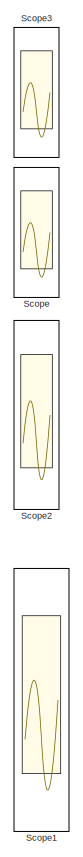
[diagram: root canvas - part 1/4, right side, full height]
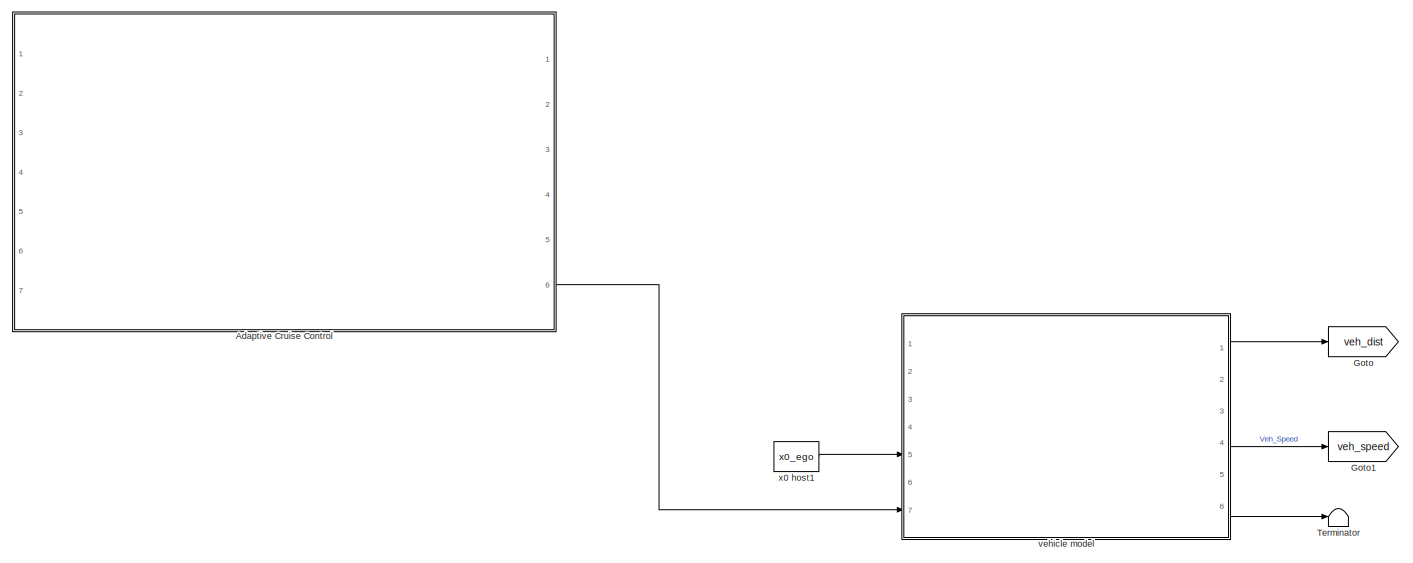
[diagram: root canvas - part 2/4, central region]
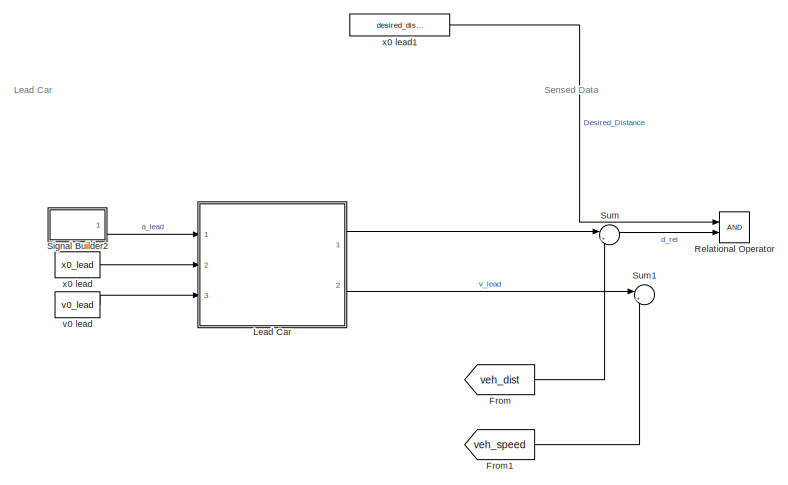
[diagram: root canvas - part 3/4, middle left region]
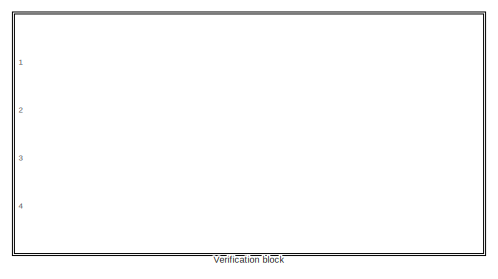
[diagram: root canvas - part 4/4, bottom right region]
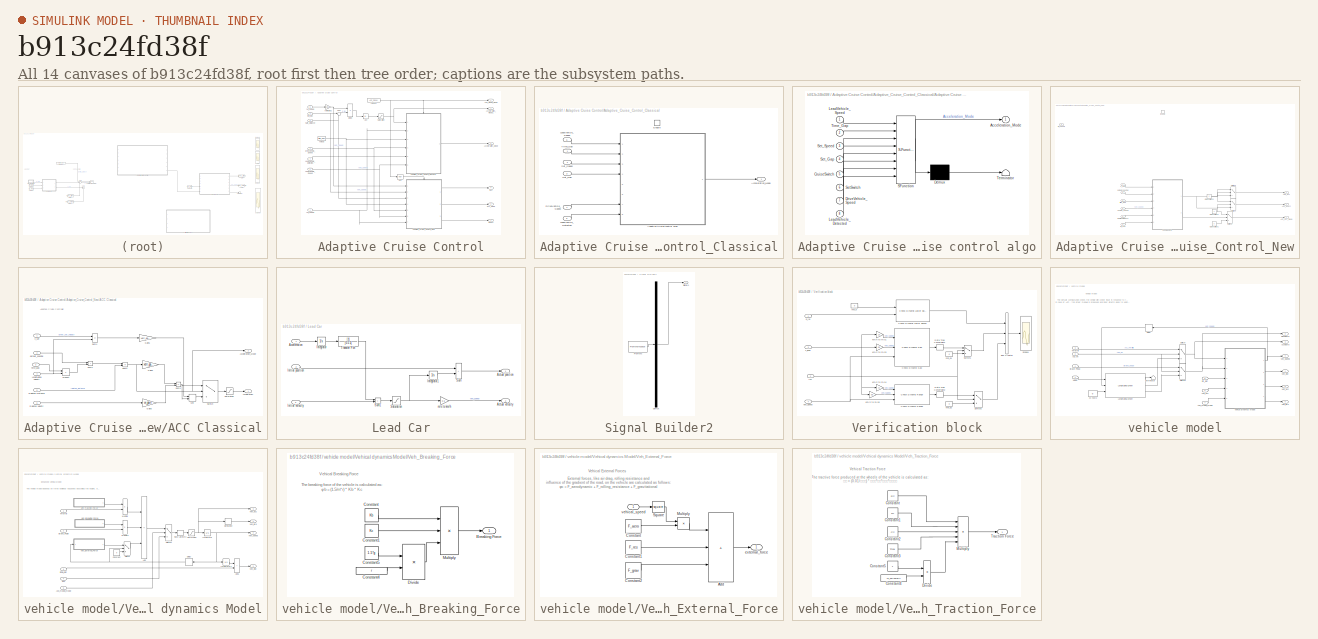
[diagram: thumbnail index - all 14 canvases of the model, root first then tree order]
MODEL slx_b913c24fd38f
KIND model
CONFIG AbsTol = auto
CONFIG EnableMultiTasking = off
CONFIG FixedStep = 0.1
CONFIG MaxStep = auto
CONFIG MinStep = auto
CONFIG RelTol = 1e-3
CONFIG SampleTimeConstraint = Unconstrained
CONFIG Solver = VariableStepAuto
CONFIG SolverName = VariableStepAuto
CONFIG StartTime = 0.0
CONFIG StopTime = 1000
BLOCK [SubSystem] Adaptive Cruise Control
  Ports = [7, 6]
  RequestExecContextInheritance = off
BLOCK [Outport] Adaptive Cruise Control/ACC_model_mode
  Port = 6
BLOCK [Abs] Adaptive Cruise Control/Abs
  SaturateOnIntegerOverflow = off
BLOCK [Outport] Adaptive Cruise Control/Acceleration_Mode
  Port = 2
BLOCK [Outport] Adaptive Cruise Control/Acceleration_Mode1
  Port = 3
BLOCK [SubSystem] Adaptive Cruise Control/Adaptive_Cruise_Control_Classical
  Ports = [6, 1, 1]
  RequestExecContextInheritance = off
BLOCK [Outport] Adaptive Cruise Control/Adaptive_Cruise_Control_Classical/Acceleration_Mode
  OutMax = 255
  OutMin = 0
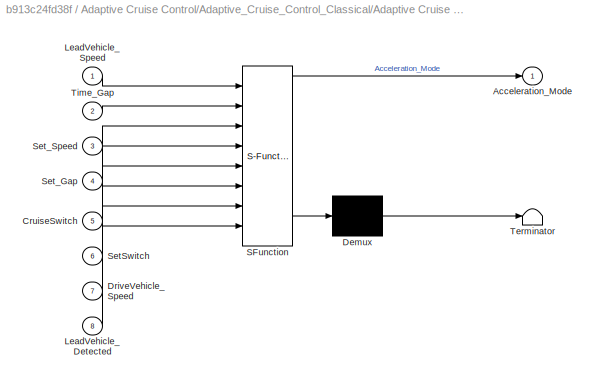
BLOCK [SubSystem] Adaptive Cruise Control/Adaptive_Cruise_Control_Classical/Adaptive Cruise control algo
  ErrorFcn = Stateflow.Translate.translate
  PermitHierarchicalResolution = ExplicitOnly
  Ports = [8, 1]
  RequestExecContextInheritance = off
  SFBlockType = Chart
  TreatAsAtomicUnit = on
BLOCK [Demux] Adaptive Cruise Control/Adaptive_Cruise_Control_Classical/Adaptive Cruise control algo/ Demux 
  Outputs = 1
  Ports = [1, 1]
BLOCK [S-Function] Adaptive Cruise Control/Adaptive_Cruise_Control_Classical/Adaptive Cruise control algo/ SFunction 
  EnableBusSupport = on
  FunctionName = sf_sfun
  PortCounts = [8 2]
  Ports = [8, 2]
  SFcnIsStateOwnerBlock = off
  SFunctionDeploymentMode = off
  Tag = Stateflow S-Function 3
BLOCK [Terminator] Adaptive Cruise Control/Adaptive_Cruise_Control_Classical/Adaptive Cruise control algo/ Terminator 
BLOCK [Outport] Adaptive Cruise Control/Adaptive_Cruise_Control_Classical/Adaptive Cruise control algo/Acceleration_Mode
BLOCK [Inport] Adaptive Cruise Control/Adaptive_Cruise_Control_Classical/Adaptive Cruise control algo/CruiseSwitch
  Port = 5
BLOCK [Inport] Adaptive Cruise Control/Adaptive_Cruise_Control_Classical/Adaptive Cruise control algo/DriveVehicle_Speed
  Port = 7
BLOCK [Inport] Adaptive Cruise Control/Adaptive_Cruise_Control_Classical/Adaptive Cruise control algo/LeadVehicle_Detected
  Port = 8
BLOCK [Inport] Adaptive Cruise Control/Adaptive_Cruise_Control_Classical/Adaptive Cruise control algo/LeadVehicle_Speed
BLOCK [Inport] Adaptive Cruise Control/Adaptive_Cruise_Control_Classical/Adaptive Cruise control algo/SetSwitch
  Port = 6
BLOCK [Inport] Adaptive Cruise Control/Adaptive_Cruise_Control_Classical/Adaptive Cruise control algo/Set_Gap
  Port = 4
BLOCK [Inport] Adaptive Cruise Control/Adaptive_Cruise_Control_Classical/Adaptive Cruise control algo/Set_Speed
  Port = 3
BLOCK [Inport] Adaptive Cruise Control/Adaptive_Cruise_Control_Classical/Adaptive Cruise control algo/Time_Gap
  Port = 2
BLOCK [Inport] Adaptive Cruise Control/Adaptive_Cruise_Control_Classical/DriveVehicle_Speed
  OutMax = 255
  OutMin = 0
  Port = 4
BLOCK [EnablePort] Adaptive Cruise Control/Adaptive_Cruise_Control_Classical/Enable
  Ports = []
BLOCK [Inport] Adaptive Cruise Control/Adaptive_Cruise_Control_Classical/LeadVehicle_Detected
  OutMax = 1
  OutMin = 0
  Port = 5
BLOCK [Inport] Adaptive Cruise Control/Adaptive_Cruise_Control_Classical/LeadVehicle_Speed
  OutMax = 255
  OutMin = 0
  Port = 6
BLOCK [Inport] Adaptive Cruise Control/Adaptive_Cruise_Control_Classical/Set_Gap
  Port = 3
BLOCK [Inport] Adaptive Cruise Control/Adaptive_Cruise_Control_Classical/Set_Speed
  Port = 2
BLOCK [Inport] Adaptive Cruise Control/Adaptive_Cruise_Control_Classical/Time_Gap
BLOCK [SubSystem] Adaptive Cruise Control/Adaptive_Cruise_Control_New
  Ports = [7, 3, 1]
  RequestExecContextInheritance = off
BLOCK [SubSystem] Adaptive Cruise Control/Adaptive_Cruise_Control_New/ACC Classical
  Ports = [6, 2]
  RTWFileNameOpts = Use function name
  RTWSystemCode = Reusable function
  RequestExecContextInheritance = off
  TreatAsAtomicUnit = on
  VariantControl = controller_type == 1
BLOCK [Outport] Adaptive Cruise Control/Adaptive_Cruise_Control_New/ACC Classical/Acceleration
  VectorParamsAs1DForOutWhenUnconnected = off
BLOCK [Outport] Adaptive Cruise Control/Adaptive_Cruise_Control_New/ACC Classical/Acceleration_Mode
  Port = 2
  VectorParamsAs1DForOutWhenUnconnected = off
BLOCK [Gain] Adaptive Cruise Control/Adaptive_Cruise_Control_New/ACC Classical/Gain1
  Gain = verr_gain
BLOCK [Gain] Adaptive Cruise Control/Adaptive_Cruise_Control_New/ACC Classical/Gain2
  Gain = xerr_gain
BLOCK [Gain] Adaptive Cruise Control/Adaptive_Cruise_Control_New/ACC Classical/Gain3
  Gain = vx_gain
BLOCK [Inport] Adaptive Cruise Control/Adaptive_Cruise_Control_New/ACC Classical/Longitudinal Velocity
  Port = 4
BLOCK [MinMax] Adaptive Cruise Control/Adaptive_Cruise_Control_New/ACC Classical/Min
  Inputs = 2
  Ports = [2, 1]
BLOCK [Product] Adaptive Cruise Control/Adaptive_Cruise_Control_New/ACC Classical/Product
  Ports = [2, 1]
BLOCK [Inport] Adaptive Cruise Control/Adaptive_Cruise_Control_New/ACC Classical/Relative Distance
  Port = 5
BLOCK [Inport] Adaptive Cruise Control/Adaptive_Cruise_Control_New/ACC Classical/Relative Velocity
  Port = 6
BLOCK [Saturate] Adaptive Cruise Control/Adaptive_Cruise_Control_New/ACC Classical/Saturation
  LowerLimit = min_ac
  UpperLimit = max_ac
BLOCK [Sum] Adaptive Cruise Control/Adaptive_Cruise_Control_New/ACC Classical/Sum1
  IconShape = rectangular
  Inputs = +-
  Ports = [2, 1]
BLOCK [Sum] Adaptive Cruise Control/Adaptive_Cruise_Control_New/ACC Classical/Sum2
  IconShape = rectangular
  Ports = [2, 1]
BLOCK [Sum] Adaptive Cruise Control/Adaptive_Cruise_Control_New/ACC Classical/Sum3
  IconShape = rectangular
  Inputs = -+
  Ports = [2, 1]
BLOCK [Sum] Adaptive Cruise Control/Adaptive_Cruise_Control_New/ACC Classical/Sum4
  IconShape = rectangular
  Inputs = +-
  Ports = [2, 1]
BLOCK [Switch] Adaptive Cruise Control/Adaptive_Cruise_Control_New/ACC Classical/Switch
  Criteria = u2 > Threshold
  InputSameDT = off
  SaturateOnIntegerOverflow = off
BLOCK [Inport] Adaptive Cruise Control/Adaptive_Cruise_Control_New/ACC Classical/default_spacing
  Port = 2
BLOCK [Inport] Adaptive Cruise Control/Adaptive_Cruise_Control_New/ACC Classical/time_gap
  Port = 3
BLOCK [Inport] Adaptive Cruise Control/Adaptive_Cruise_Control_New/ACC Classical/v_set
BLOCK [Outport] Adaptive Cruise Control/Adaptive_Cruise_Control_New/ACC_acc
BLOCK [Outport] Adaptive Cruise Control/Adaptive_Cruise_Control_New/ACC_acc_mode
  Port = 2
BLOCK [Outport] Adaptive Cruise Control/Adaptive_Cruise_Control_New/ACC_deacc
  Port = 3
BLOCK [Constant] Adaptive Cruise Control/Adaptive_Cruise_Control_New/CruiseSwitch1
  Value = 0
BLOCK [Constant] Adaptive Cruise Control/Adaptive_Cruise_Control_New/CruiseSwitch2
BLOCK [Constant] Adaptive Cruise Control/Adaptive_Cruise_Control_New/CruiseSwitch3
  Value = 0
BLOCK [EnablePort] Adaptive Cruise Control/Adaptive_Cruise_Control_New/Enable
  Ports = []
BLOCK [Inport] Adaptive Cruise Control/Adaptive_Cruise_Control_New/Relative Distance
  Port = 2
BLOCK [Switch] Adaptive Cruise Control/Adaptive_Cruise_Control_New/Switch2
  Criteria = u2 > Threshold
  InputSameDT = off
  SaturateOnIntegerOverflow = off
BLOCK [Switch] Adaptive Cruise Control/Adaptive_Cruise_Control_New/Switch3
  Criteria = u2 > Threshold
  InputSameDT = off
  SaturateOnIntegerOverflow = off
BLOCK [Switch] Adaptive Cruise Control/Adaptive_Cruise_Control_New/Switch4
  Criteria = u2 > Threshold
  InputSameDT = off
  SaturateOnIntegerOverflow = off
BLOCK [Inport] Adaptive Cruise Control/Adaptive_Cruise_Control_New/Vehicle_speed
  Port = 5
BLOCK [Inport] Adaptive Cruise Control/Adaptive_Cruise_Control_New/default_spacing
  Port = 3
BLOCK [Inport] Adaptive Cruise Control/Adaptive_Cruise_Control_New/ref_speed
  Port = 6
BLOCK [Inport] Adaptive Cruise Control/Adaptive_Cruise_Control_New/rel_veh
BLOCK [Inport] Adaptive Cruise Control/Adaptive_Cruise_Control_New/time_gap
  Port = 4
BLOCK [Inport] Adaptive Cruise Control/Adaptive_Cruise_Control_New/v_set
  Port = 7
BLOCK [Product] Adaptive Cruise Control/Divide
  Inputs = /*
  Ports = [2, 1]
BLOCK [Inport] Adaptive Cruise Control/DriveVehicle_Speed
  OutMax = 255
  OutMin = 0
  Port = 7
BLOCK [Inport] Adaptive Cruise Control/LeadVehicle_Detected
  OutMax = 1
  OutMin = 0
  Port = 4
BLOCK [Inport] Adaptive Cruise Control/LeadVehicle_Speed
  OutMax = 255
  OutMin = 0
  Port = 6
BLOCK [Logic] Adaptive Cruise Control/NOT
  AllPortsSameDT = off
  IconShape = distinctive
  Operator = NOT
  OutDataTypeStr = boolean
  Ports = [1, 1]
BLOCK [Inport] Adaptive Cruise Control/Rel_dist
  Port = 3
BLOCK [Inport] Adaptive Cruise Control/Safe_Distance
  Port = 2
BLOCK [Saturate] Adaptive Cruise Control/Saturation
  LowerLimit = 0
  UpperLimit = 100
BLOCK [Sum] Adaptive Cruise Control/Sum
  Inputs = |++
  Ports = [2, 1]
BLOCK [Outport] Adaptive Cruise Control/acc
  Port = 4
BLOCK [Outport] Adaptive Cruise Control/acc_mode
  Port = 5
BLOCK [Outport] Adaptive Cruise Control/deacc
BLOCK [Gain] Adaptive Cruise Control/km//h to m//s2
  Gain = 1/3.6
BLOCK [Inport] Adaptive Cruise Control/ref_speed
BLOCK [Inport] Adaptive Cruise Control/rel_speed
  OutMax = 1
  OutMin = 0
  Port = 5
BLOCK [Constant] Adaptive Cruise Control/v0 lead
  SampleTime = Ts
  Value = time_gap
BLOCK [Constant] Adaptive Cruise Control/v0 lead1
  SampleTime = Ts
  Value = ACC_model
BLOCK [From] From
  GotoTag = veh_dist
BLOCK [From] From1
  GotoTag = veh_speed
BLOCK [Goto] Goto
  GotoTag = veh_dist
BLOCK [Goto] Goto1
  GotoTag = veh_speed
BLOCK [SubSystem] Lead Car
  Ports = [3, 2]
  RequestExecContextInheritance = off
BLOCK [Inport] Lead Car/Acceleration
BLOCK [Outport] Lead Car/Actual position
  VectorParamsAs1DForOutWhenUnconnected = off
BLOCK [Outport] Lead Car/Actual velocity
  Port = 2
  VectorParamsAs1DForOutWhenUnconnected = off
BLOCK [Inport] Lead Car/Initial position
  Port = 2
BLOCK [Inport] Lead Car/Initial velocity
  Port = 3
BLOCK [Integrator] Lead Car/Integrator
  Ports = [1, 1]
BLOCK [Integrator] Lead Car/Integrator1
  Ports = [1, 1]
BLOCK [Saturate] Lead Car/Saturation
  LowerLimit = 0
  UpperLimit = 200
BLOCK [Sum] Lead Car/Sum
  IconShape = rectangular
  Ports = [2, 1]
BLOCK [Sum] Lead Car/Sum1
  IconShape = rectangular
  Ports = [2, 1]
BLOCK [TransferFcn] Lead Car/Transfer Fcn
  Denominator = [0.5 1]
BLOCK [Gain] Lead Car/m//s to km//h
  Gain = 3.6
BLOCK [RelationalOperator] Relational Operator
  InputSameDT = off
  OutDataTypeStr = boolean
  Ports = [2, 1]
  RndMeth = Simplest
BLOCK [Scope] Scope
  Floating = off
  NumInputPorts = 4
  Ports = [4]
  ScopeSpecificationString = Simulink.scopes.TimeScopeBlockCfg('CurrentConfiguration', extmgr.ConfigurationSet(extmgr.Configuration('Core','General UI',true),extmgr.Configuration('Core','Source UI',true),extmgr.Configuration('Sources','WiredSimulink',true),extmgr.Configuration('Visuals','Time Domain',true,'SerializedDisplays',{struct('MinYLimReal','-2551.2625','MaxYLimReal','24961.3625','YLabelReal','{\itv} in {\it km/h}','Mi...<+3973ch>
BLOCK [Scope] Scope1
  Floating = off
  NumInputPorts = 4
  Ports = [4]
  ScopeSpecificationString = Simulink.scopes.TimeScopeBlockCfg('CurrentConfiguration', extmgr.ConfigurationSet(extmgr.Configuration('Core','General UI',true),extmgr.Configuration('Core','Source UI',true),extmgr.Configuration('Sources','WiredSimulink',true,'DataLoggingVariableName','ScopeData1'),extmgr.Configuration('Visuals','Time Domain',true,'SerializedDisplays',{struct('MinYLimReal','-19.08377','MaxYLimReal','171.75392','Y...<+3953ch>
BLOCK [Scope] Scope2
  Floating = off
  NumInputPorts = 4
  Ports = [4]
  ScopeSpecificationString = Simulink.scopes.TimeScopeBlockCfg('CurrentConfiguration', extmgr.ConfigurationSet(extmgr.Configuration('Core','General UI',true),extmgr.Configuration('Core','Source UI',true),extmgr.Configuration('Sources','WiredSimulink',true,'DataLoggingVariableName','ScopeData1'),extmgr.Configuration('Visuals','Time Domain',true,'SerializedDisplays',{struct('MinYLimReal','-0.125','MaxYLimReal','1.125','YLabelRe...<+2030ch>
BLOCK [Scope] Scope3
  Floating = off
  NumInputPorts = 4
  Ports = [4]
  ScopeSpecificationString = Simulink.scopes.TimeScopeBlockCfg('CurrentConfiguration', extmgr.ConfigurationSet(extmgr.Configuration('Core','General UI',true),extmgr.Configuration('Core','Source UI',true),extmgr.Configuration('Sources','WiredSimulink',true,'DataLoggingVariableName','ScopeData2'),extmgr.Configuration('Visuals','Time Domain',true,'SerializedDisplays',{struct('MinYLimReal','15.16574','MaxYLimReal','503.50836','YL...<+4003ch>
BLOCK [SubSystem] Signal Builder2
  ClipboardFcn = sigbuilder_block('clipboard');
  CloseFcn = sigbuilder_block('close');
  ContinueFcn = sigbuilder_block('continue');
  CopyFcn = sigbuilder_block('copy');
  DeleteFcn = sigbuilder_block('delete');
  LoadFcn = sigbuilder_block('load');
  MaskHideContents = on
  ModelCloseFcn = sigbuilder_block('modelClose');
  NameChangeFcn = sigbuilder_block('namechange');
  OpenFcn = sigbuilder_block('open',[-1359 225 891.75 468.75 ]);
  PauseFcn = sigbuilder_block('pause');
  Ports = [0, 1]
  PreSaveFcn = sigbuilder_block('preSave');
  RequestExecContextInheritance = off
  StartFcn = sigbuilder_block('start');
  StopFcn = sigbuilder_block('stop');
  Tag = STV Subsys
BLOCK [Demux] Signal Builder2/Demux
  DisplayOption = none
  Outputs = 1
  Ports = [1, 1]
  Tag = STV Demux
BLOCK [FromWorkspace] Signal Builder2/FromWs
  Tag = STV FromWs
  VariableName = tuvar
BLOCK [Outport] Signal Builder2/Signal 1
  Tag = STV Outport
BLOCK [Sum] Sum
  Inputs = |+-
  Ports = [2, 1]
BLOCK [Sum] Sum1
  Inputs = |+-
  Ports = [2, 1]
BLOCK [Terminator] Terminator
BLOCK [SubSystem] Verification block
  Ports = [4]
  RequestExecContextInheritance = off
BLOCK [BusCreator] Verification block/Bus Creator
  DisplayOption = bar
  InheritFromInputs = on
  Inputs = 3
  Ports = [3, 1]
BLOCK [Reference] Verification block/Check Dynamic Gap  REF=simulink/Model
Verification/Check 
Dynamic Gap
  Description = u < min || max < u
  Ports = [3, 1]
  SourceBlock = simulink/Model\nVerification/Check \nDynamic Gap
  SourceProductBaseCode = SL
  SourceType = Checks_DGap
BLOCK [Reference] Verification block/Check Dynamic Lower Bound  REF=simulink/Model
Verification/Check Dynamic 
Lower Bound
  Description = min < u
  Ports = [2, 1]
  SourceBlock = simulink/Model\nVerification/Check Dynamic \nLower Bound
  SourceProductBaseCode = SL
  SourceType = Checks_DMin
BLOCK [Reference] Verification block/Check Dynamic Range  REF=simulink/Model
Verification/Check 
Dynamic Range
  Description = min < u < max
  Ports = [3, 1]
  SourceBlock = simulink/Model\nVerification/Check \nDynamic Range
  SourceProductBaseCode = SL
  SourceType = Checks_DRange
BLOCK [DataTypeConversion] Verification block/Data Type Conversion1
  OutDataTypeStr = double
  RndMeth = Floor
  SaturateOnIntegerOverflow = off
BLOCK [DataTypeConversion] Verification block/Data Type Conversion2
  OutDataTypeStr = double
  RndMeth = Floor
  SaturateOnIntegerOverflow = off
BLOCK [Inport] Verification block/In2
  Port = 2
BLOCK [Scope] Verification block/Scope4
  Floating = off
  NumInputPorts = 1
  Ports = [1]
  ScopeSpecificationString = Simulink.scopes.TimeScopeBlockCfg('CurrentConfiguration', extmgr.ConfigurationSet(extmgr.Configuration('Core','General UI',true),extmgr.Configuration('Core','Source UI',true),extmgr.Configuration('Sources','WiredSimulink',true,'DataLoggingVariableName','ScopeData4'),extmgr.Configuration('Visuals','Time Domain',true,'SerializedDisplays',{struct('MinYLimReal','0.9','MaxYLimReal','1.1','YLabelReal','...<+2657ch>
BLOCK [Switch] Verification block/Switch1
  Criteria = u2 > Threshold
BLOCK [Switch] Verification block/Switch2
  Criteria = u2 > Threshold
BLOCK [Inport] Verification block/Veh_Speed
  Port = 4
BLOCK [Inport] Verification block/d_rel
BLOCK [Gain] Verification block/km//h to m//s1
  Gain = 1.5
BLOCK [Gain] Verification block/km//h to m//s3
  Gain = 0.5
BLOCK [Gain] Verification block/km//h to m//s4
  Gain = 1.1
BLOCK [Gain] Verification block/km//h to m//s5
  Gain = 0.9
BLOCK [Constant] Verification block/min_d
  Value = 0
BLOCK [Constant] Verification block/min_d1
  Value = 0
BLOCK [Constant] Verification block/min_d2
  Value = 0
BLOCK [Inport] Verification block/v_lead
  Port = 3
BLOCK [Constant] v0 lead
  SampleTime = Ts
  Value = v0_lead
BLOCK [SubSystem] vehicle model
  Ports = [7, 6]
  RequestExecContextInheritance = off
  ShowPortLabels = FromPortBlockName
BLOCK [Inport] vehicle model/ACC on
  Port = 2
BLOCK [Inport] vehicle model/ACC_acc
  Port = 6
BLOCK [Inport] vehicle model/ACC_model_mode
  Port = 7
BLOCK [Outport] vehicle model/AccelCmd
  Port = 3
BLOCK [Inport] vehicle model/Brake Pedal
  Port = 4
BLOCK [Outport] vehicle model/DecelCmd
  Port = 2
BLOCK [Delay] vehicle model/Delay
  DelayLength = 1
  InitialCondition = 0
  InputPortMap = u0
  Ports = [1, 1]
BLOCK [Reference] vehicle model/Longitudinal Driver  REF=autolibshared/Longitudinal Driver
  Ports = [3, 3]
  SourceBlock = autolibshared/Longitudinal Driver
  SourceProductBaseCode = PW,MT,VE,VP
  SourceType = Longitudinal Driver
BLOCK [Switch] vehicle model/Switch
  Criteria = u2 > Threshold
BLOCK [Switch] vehicle model/Switch1
  Criteria = u2 > Threshold
BLOCK [Terminator] vehicle model/Terminator
BLOCK [Inport] vehicle model/Throttle
  Port = 3
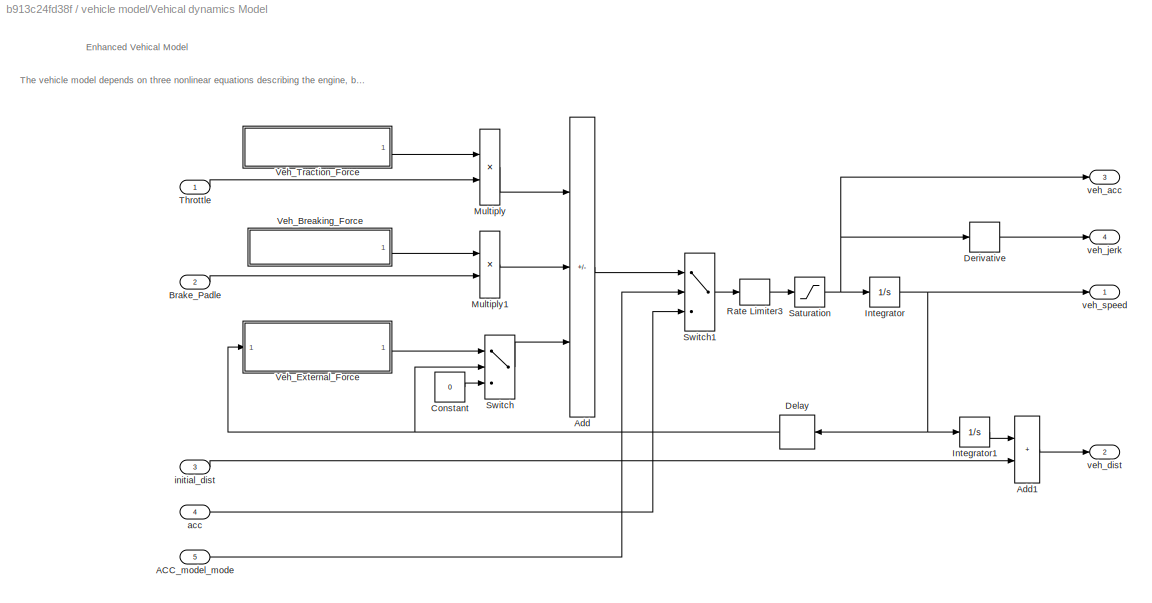
BLOCK [SubSystem] vehicle model/Vehical dynamics Model
  Ports = [5, 4]
  RequestExecContextInheritance = off
BLOCK [Inport] vehicle model/Vehical dynamics Model/ACC_model_mode
  Port = 5
BLOCK [Sum] vehicle model/Vehical dynamics Model/Add
  IconShape = rectangular
  Inputs = +--
  Ports = [3, 1]
BLOCK [Sum] vehicle model/Vehical dynamics Model/Add1
  IconShape = rectangular
  Ports = [2, 1]
BLOCK [Inport] vehicle model/Vehical dynamics Model/Brake_Padle
  Port = 2
BLOCK [Constant] vehicle model/Vehical dynamics Model/Constant
  Value = 0
BLOCK [Delay] vehicle model/Vehical dynamics Model/Delay
  DelayLength = 1
  InitialCondition = 0
  InputPortMap = u0
  Ports = [1, 1]
BLOCK [Derivative] vehicle model/Vehical dynamics Model/Derivative
BLOCK [Integrator] vehicle model/Vehical dynamics Model/Integrator
  Ports = [1, 1]
BLOCK [Integrator] vehicle model/Vehical dynamics Model/Integrator1
  Ports = [1, 1]
BLOCK [Product] vehicle model/Vehical dynamics Model/Multiply
  Ports = [2, 1]
BLOCK [Product] vehicle model/Vehical dynamics Model/Multiply1
  Ports = [2, 1]
BLOCK [RateLimiter] vehicle model/Vehical dynamics Model/Rate Limiter3
BLOCK [Saturate] vehicle model/Vehical dynamics Model/Saturation
  LowerLimit = -3
  UpperLimit = 3
BLOCK [Switch] vehicle model/Vehical dynamics Model/Switch
  Criteria = u2 > Threshold
BLOCK [Switch] vehicle model/Vehical dynamics Model/Switch1
  Criteria = u2 > Threshold
BLOCK [Inport] vehicle model/Vehical dynamics Model/Throttle
BLOCK [SubSystem] vehicle model/Vehical dynamics Model/Veh_Breaking_Force
  Ports = [0, 1]
  RequestExecContextInheritance = off
BLOCK [Outport] vehicle model/Vehical dynamics Model/Veh_Breaking_Force/Breaking Force 
  VectorParamsAs1DForOutWhenUnconnected = off
BLOCK [Constant] vehicle model/Vehical dynamics Model/Veh_Breaking_Force/Constant
  Value = Kb
BLOCK [Constant] vehicle model/Vehical dynamics Model/Veh_Breaking_Force/Constant1
  Value = Kc
BLOCK [Constant] vehicle model/Vehical dynamics Model/Veh_Breaking_Force/Constant4
  Value = r
BLOCK [Constant] vehicle model/Vehical dynamics Model/Veh_Breaking_Force/Constant5
  Value = 1.5*g
BLOCK [Product] vehicle model/Vehical dynamics Model/Veh_Breaking_Force/Divide
  Inputs = */
  Ports = [2, 1]
BLOCK [Product] vehicle model/Vehical dynamics Model/Veh_Breaking_Force/Multiply
  Inputs = 3
  Ports = [3, 1]
BLOCK [SubSystem] vehicle model/Vehical dynamics Model/Veh_External_Force
  Ports = [1, 1]
  RequestExecContextInheritance = off
BLOCK [Sum] vehicle model/Vehical dynamics Model/Veh_External_Force/Add
  IconShape = rectangular
  Inputs = +++
  Ports = [3, 1]
BLOCK [Constant] vehicle model/Vehical dynamics Model/Veh_External_Force/Constant
  Value = F_aero
BLOCK [Constant] vehicle model/Vehical dynamics Model/Veh_External_Force/Constant1
  Value = F_res
BLOCK [Constant] vehicle model/Vehical dynamics Model/Veh_External_Force/Constant2
  Value = F_grav
BLOCK [Product] vehicle model/Vehical dynamics Model/Veh_External_Force/Multiply
  Ports = [2, 1]
BLOCK [Math] vehicle model/Vehical dynamics Model/Veh_External_Force/Square
  Operator = square
  Ports = [1, 1]
  SignedPower = on
BLOCK [Outport] vehicle model/Vehical dynamics Model/Veh_External_Force/external_force
  VectorParamsAs1DForOutWhenUnconnected = off
BLOCK [Inport] vehicle model/Vehical dynamics Model/Veh_External_Force/vehical_speed
BLOCK [SubSystem] vehicle model/Vehical dynamics Model/Veh_Traction_Force
  Ports = [0, 1]
  RequestExecContextInheritance = off
BLOCK [Constant] vehicle model/Vehical dynamics Model/Veh_Traction_Force/Constant
  Value = Rtr
BLOCK [Constant] vehicle model/Vehical dynamics Model/Veh_Traction_Force/Constant1
  Value = Rf
BLOCK [Constant] vehicle model/Vehical dynamics Model/Veh_Traction_Force/Constant2
  Value = Ctr
BLOCK [Constant] vehicle model/Vehical dynamics Model/Veh_Traction_Force/Constant3
  Value = Tmax
BLOCK [Constant] vehicle model/Vehical dynamics Model/Veh_Traction_Force/Constant4
  Value = m_Follower*r
BLOCK [Constant] vehicle model/Vehical dynamics Model/Veh_Traction_Force/Constant5
BLOCK [Product] vehicle model/Vehical dynamics Model/Veh_Traction_Force/Divide
  Inputs = */
  Ports = [2, 1]
BLOCK [Product] vehicle model/Vehical dynamics Model/Veh_Traction_Force/Multiply
  Inputs = 5
  Ports = [5, 1]
BLOCK [Outport] vehicle model/Vehical dynamics Model/Veh_Traction_Force/Traction Force
  VectorParamsAs1DForOutWhenUnconnected = off
BLOCK [Inport] vehicle model/Vehical dynamics Model/acc
  Port = 4
BLOCK [Inport] vehicle model/Vehical dynamics Model/initial_dist
  Port = 3
BLOCK [Outport] vehicle model/Vehical dynamics Model/veh_acc
  Port = 3
  VectorParamsAs1DForOutWhenUnconnected = off
BLOCK [Outport] vehicle model/Vehical dynamics Model/veh_dist
  Port = 2
  VectorParamsAs1DForOutWhenUnconnected = off
BLOCK [Outport] vehicle model/Vehical dynamics Model/veh_jerk
  Port = 4
  VectorParamsAs1DForOutWhenUnconnected = off
BLOCK [Outport] vehicle model/Vehical dynamics Model/veh_speed
  VectorParamsAs1DForOutWhenUnconnected = off
BLOCK [Inport] vehicle model/VelRef
BLOCK [Inport] vehicle model/init_dist
  Port = 5
BLOCK [Outport] vehicle model/veh_Speed
  Port = 4
BLOCK [Outport] vehicle model/veh_acc
  Port = 5
BLOCK [Outport] vehicle model/veh_dist
BLOCK [Outport] vehicle model/veh_jerk
  Port = 6
BLOCK [Constant] vehicle model/x0 host2
  SampleTime = Ts
  Value = 0
BLOCK [Constant] x0 host1
  SampleTime = Ts
  Value = x0_ego
BLOCK [Constant] x0 lead
  SampleTime = Ts
  Value = x0_lead
BLOCK [Constant] x0 lead1
  SampleTime = Ts
  Value = desired_distance
ANNOTATION (root): Lead Car
ANNOTATION (root): Sensed Data
ANNOTATION Adaptive Cruise Control/Adaptive_Cruise_Control_New/ACC Classical: Adaptive Cruise Controller
ANNOTATION vehicle model: The default configuration drives the vehicle with driver input in response to ref speed provided as input and gives acc and velocity of vehicle as output. in case of ACC , the driver module is bypassed and input directly goes to vehicle dynamics models to change speed.
ANNOTATION vehicle model: Vehicle model
ANNOTATION vehicle model/Vehical dynamics Model: The vehicle model depends on three nonlinear equations describing the engine, brake system and dynamics of the vehicle.
ANNOTATION vehicle model/Vehical dynamics Model: Enhanced Vehical Model
ANNOTATION vehicle model/Vehical dynamics Model/Veh_Breaking_Force: The breaking force of the vehicle is calculated as: φb = (1.5/m*r) * Kb * Kc
ANNOTATION vehicle model/Vehical dynamics Model/Veh_Breaking_Force: Vehical Breaking Force
ANNOTATION vehicle model/Vehical dynamics Model/Veh_External_Force: External forces, like air drag, rolling resistance and influence of the gradient of the road, on the vehicle are calculated as follows: φc = F_aerodynamic + F_rolling_resistance + F_gravitational
ANNOTATION vehicle model/Vehical dynamics Model/Veh_External_Force: Vehical External Forces
ANNOTATION vehicle model/Vehical dynamics Model/Veh_Traction_Force: The tractive force produced at the wheels of the vehicle is calculated as: 𝜑𝑡 = (0.01/𝑚∗𝑟) * 𝑅𝑡𝑟*𝑅𝑓*𝐶𝑡𝑟*𝑇𝑚𝑎𝑥
ANNOTATION vehicle model/Vehical dynamics Model/Veh_Traction_Force: Vehical Traction Force
LINE Adaptive Cruise Control/Abs:1 -> Adaptive Cruise Control/Saturation:1
LINE Adaptive Cruise Control/Adaptive_Cruise_Control_Classical/Adaptive Cruise control algo:1 -> Adaptive Cruise Control/Adaptive_Cruise_Control_Classical/Acceleration_Mode:1
LINE Adaptive Cruise Control/Adaptive_Cruise_Control_Classical/DriveVehicle_Speed:1 -> Adaptive Cruise Control/Adaptive_Cruise_Control_Classical/Adaptive Cruise control algo:7
LINE Adaptive Cruise Control/Adaptive_Cruise_Control_Classical/LeadVehicle_Detected:1 -> Adaptive Cruise Control/Adaptive_Cruise_Control_Classical/Adaptive Cruise control algo:8
LINE Adaptive Cruise Control/Adaptive_Cruise_Control_Classical/LeadVehicle_Speed:1 -> Adaptive Cruise Control/Adaptive_Cruise_Control_Classical/Adaptive Cruise control algo:1
LINE Adaptive Cruise Control/Adaptive_Cruise_Control_Classical/Set_Gap:1 -> Adaptive Cruise Control/Adaptive_Cruise_Control_Classical/Adaptive Cruise control algo:4
LINE Adaptive Cruise Control/Adaptive_Cruise_Control_Classical/Set_Speed:1 -> Adaptive Cruise Control/Adaptive_Cruise_Control_Classical/Adaptive Cruise control algo:3
LINE Adaptive Cruise Control/Adaptive_Cruise_Control_Classical/Time_Gap:1 -> Adaptive Cruise Control/Adaptive_Cruise_Control_Classical/Adaptive Cruise control algo:2
LINE Adaptive Cruise Control/Adaptive_Cruise_Control_Classical:1 -> Adaptive Cruise Control/Acceleration_Mode:1
LINE Adaptive Cruise Control/Adaptive_Cruise_Control_New/ACC Classical/Gain1:1 -> Adaptive Cruise Control/Adaptive_Cruise_Control_New/ACC Classical/Min:1
LINE Adaptive Cruise Control/Adaptive_Cruise_Control_New/ACC Classical/Gain2:1 -> Adaptive Cruise Control/Adaptive_Cruise_Control_New/ACC Classical/Sum3:1
LINE Adaptive Cruise Control/Adaptive_Cruise_Control_New/ACC Classical/Gain3:1 -> Adaptive Cruise Control/Adaptive_Cruise_Control_New/ACC Classical/Sum3:2
NET Adaptive Cruise Control/Adaptive_Cruise_Control_New/ACC Classical/Longitudinal Velocity:1 -> Adaptive Cruise Control/Adaptive_Cruise_Control_New/ACC Classical/Product:2, Adaptive Cruise Control/Adaptive_Cruise_Control_New/ACC Classical/Sum4:2
LINE Adaptive Cruise Control/Adaptive_Cruise_Control_New/ACC Classical/Min:1 -> Adaptive Cruise Control/Adaptive_Cruise_Control_New/ACC Classical/Switch:3
LINE Adaptive Cruise Control/Adaptive_Cruise_Control_New/ACC Classical/Product:1 -> Adaptive Cruise Control/Adaptive_Cruise_Control_New/ACC Classical/Sum2:2
LINE Adaptive Cruise Control/Adaptive_Cruise_Control_New/ACC Classical/Relative Distance:1 -> Adaptive Cruise Control/Adaptive_Cruise_Control_New/ACC Classical/Sum1:2
LINE Adaptive Cruise Control/Adaptive_Cruise_Control_New/ACC Classical/Relative Velocity:1 -> Adaptive Cruise Control/Adaptive_Cruise_Control_New/ACC Classical/Gain3:1
LINE Adaptive Cruise Control/Adaptive_Cruise_Control_New/ACC Classical/Saturation:1 -> Adaptive Cruise Control/Adaptive_Cruise_Control_New/ACC Classical/Acceleration:1
NET Adaptive Cruise Control/Adaptive_Cruise_Control_New/ACC Classical/Sum1:1 -> Adaptive Cruise Control/Adaptive_Cruise_Control_New/ACC Classical/Acceleration_Mode:1, Adaptive Cruise Control/Adaptive_Cruise_Control_New/ACC Classical/Gain2:1, Adaptive Cruise Control/Adaptive_Cruise_Control_New/ACC Classical/Switch:2
LINE Adaptive Cruise Control/Adaptive_Cruise_Control_New/ACC Classical/Sum2:1 -> Adaptive Cruise Control/Adaptive_Cruise_Control_New/ACC Classical/Sum1:1
NET Adaptive Cruise Control/Adaptive_Cruise_Control_New/ACC Classical/Sum3:1 -> Adaptive Cruise Control/Adaptive_Cruise_Control_New/ACC Classical/Min:2, Adaptive Cruise Control/Adaptive_Cruise_Control_New/ACC Classical/Switch:1
LINE Adaptive Cruise Control/Adaptive_Cruise_Control_New/ACC Classical/Sum4:1 -> Adaptive Cruise Control/Adaptive_Cruise_Control_New/ACC Classical/Gain1:1
LINE Adaptive Cruise Control/Adaptive_Cruise_Control_New/ACC Classical/Switch:1 -> Adaptive Cruise Control/Adaptive_Cruise_Control_New/ACC Classical/Saturation:1
LINE Adaptive Cruise Control/Adaptive_Cruise_Control_New/ACC Classical/default_spacing:1 -> Adaptive Cruise Control/Adaptive_Cruise_Control_New/ACC Classical/Sum2:1
LINE Adaptive Cruise Control/Adaptive_Cruise_Control_New/ACC Classical/time_gap:1 -> Adaptive Cruise Control/Adaptive_Cruise_Control_New/ACC Classical/Product:1
LINE Adaptive Cruise Control/Adaptive_Cruise_Control_New/ACC Classical/v_set:1 -> Adaptive Cruise Control/Adaptive_Cruise_Control_New/ACC Classical/Sum4:1
NET Adaptive Cruise Control/Adaptive_Cruise_Control_New/ACC Classical:1 -> Adaptive Cruise Control/Adaptive_Cruise_Control_New/Switch3:1, Adaptive Cruise Control/Adaptive_Cruise_Control_New/Switch3:2, Adaptive Cruise Control/Adaptive_Cruise_Control_New/Switch4:2, Adaptive Cruise Control/Adaptive_Cruise_Control_New/Switch4:3
LINE Adaptive Cruise Control/Adaptive_Cruise_Control_New/ACC Classical:2 -> Adaptive Cruise Control/Adaptive_Cruise_Control_New/Switch2:2
LINE Adaptive Cruise Control/Adaptive_Cruise_Control_New/CruiseSwitch1:1 -> Adaptive Cruise Control/Adaptive_Cruise_Control_New/Switch2:3
LINE Adaptive Cruise Control/Adaptive_Cruise_Control_New/CruiseSwitch2:1 -> Adaptive Cruise Control/Adaptive_Cruise_Control_New/Switch2:1
NET Adaptive Cruise Control/Adaptive_Cruise_Control_New/CruiseSwitch3:1 -> Adaptive Cruise Control/Adaptive_Cruise_Control_New/Switch3:3, Adaptive Cruise Control/Adaptive_Cruise_Control_New/Switch4:1
LINE Adaptive Cruise Control/Adaptive_Cruise_Control_New/Relative Distance:1 -> Adaptive Cruise Control/Adaptive_Cruise_Control_New/ACC Classical:5
LINE Adaptive Cruise Control/Adaptive_Cruise_Control_New/Switch2:1 -> Adaptive Cruise Control/Adaptive_Cruise_Control_New/ACC_acc_mode:1
LINE Adaptive Cruise Control/Adaptive_Cruise_Control_New/Switch3:1 -> Adaptive Cruise Control/Adaptive_Cruise_Control_New/ACC_acc:1
LINE Adaptive Cruise Control/Adaptive_Cruise_Control_New/Switch4:1 -> Adaptive Cruise Control/Adaptive_Cruise_Control_New/ACC_deacc:1
LINE Adaptive Cruise Control/Adaptive_Cruise_Control_New/Vehicle_speed:1 -> Adaptive Cruise Control/Adaptive_Cruise_Control_New/ACC Classical:4
LINE Adaptive Cruise Control/Adaptive_Cruise_Control_New/default_spacing:1 -> Adaptive Cruise Control/Adaptive_Cruise_Control_New/ACC Classical:2
LINE Adaptive Cruise Control/Adaptive_Cruise_Control_New/rel_veh:1 -> Adaptive Cruise Control/Adaptive_Cruise_Control_New/ACC Classical:6
LINE Adaptive Cruise Control/Adaptive_Cruise_Control_New/time_gap:1 -> Adaptive Cruise Control/Adaptive_Cruise_Control_New/ACC Classical:3
LINE Adaptive Cruise Control/Adaptive_Cruise_Control_New/v_set:1 -> Adaptive Cruise Control/Adaptive_Cruise_Control_New/ACC Classical:1
LINE Adaptive Cruise Control/Adaptive_Cruise_Control_New:1 -> Adaptive Cruise Control/acc:1
LINE Adaptive Cruise Control/Adaptive_Cruise_Control_New:2 -> Adaptive Cruise Control/acc_mode:1
LINE Adaptive Cruise Control/Adaptive_Cruise_Control_New:3 -> Adaptive Cruise Control/deacc:1
LINE Adaptive Cruise Control/Divide:1 -> Adaptive Cruise Control/Abs:1
NET Adaptive Cruise Control/DriveVehicle_Speed:1 -> Adaptive Cruise Control/Adaptive_Cruise_Control_Classical:4, Adaptive Cruise Control/Adaptive_Cruise_Control_New:5
LINE Adaptive Cruise Control/LeadVehicle_Detected:1 -> Adaptive Cruise Control/Adaptive_Cruise_Control_Classical:5
NET Adaptive Cruise Control/LeadVehicle_Speed:1 -> Adaptive Cruise Control/Adaptive_Cruise_Control_Classical:6, Adaptive Cruise Control/Adaptive_Cruise_Control_New:6
LINE Adaptive Cruise Control/NOT:1 -> Adaptive Cruise Control/Adaptive_Cruise_Control_New:enable
NET Adaptive Cruise Control/Rel_dist:1 -> Adaptive Cruise Control/Adaptive_Cruise_Control_New:2, Adaptive Cruise Control/Sum:1
NET Adaptive Cruise Control/Safe_Distance:1 -> Adaptive Cruise Control/Adaptive_Cruise_Control_New:3, Adaptive Cruise Control/Sum:2
NET Adaptive Cruise Control/Saturation:1 -> Adaptive Cruise Control/Acceleration_Mode1:1, Adaptive Cruise Control/Adaptive_Cruise_Control_Classical:1
LINE Adaptive Cruise Control/Sum:1 -> Adaptive Cruise Control/Divide:2
NET Adaptive Cruise Control/km//h to m//s2:1 -> Adaptive Cruise Control/Adaptive_Cruise_Control_New:1, Adaptive Cruise Control/Divide:1
NET Adaptive Cruise Control/ref_speed:1 -> Adaptive Cruise Control/Adaptive_Cruise_Control_Classical:2, Adaptive Cruise Control/Adaptive_Cruise_Control_New:7
LINE Adaptive Cruise Control/rel_speed:1 -> Adaptive Cruise Control/km//h to m//s2:1
NET Adaptive Cruise Control/v0 lead1:1 -> Adaptive Cruise Control/ACC_model_mode:1, Adaptive Cruise Control/Adaptive_Cruise_Control_Classical:enable, Adaptive Cruise Control/NOT:1
NET Adaptive Cruise Control/v0 lead:1 -> Adaptive Cruise Control/Adaptive_Cruise_Control_Classical:3, Adaptive Cruise Control/Adaptive_Cruise_Control_New:4
LINE Adaptive Cruise Control:6 -> vehicle model:7
LINE From1:1 -> Sum1:2
LINE From:1 -> Sum:2
LINE Lead Car/Acceleration:1 -> Lead Car/Integrator:1
LINE Lead Car/Initial position:1 -> Lead Car/Sum:1
LINE Lead Car/Initial velocity:1 -> Lead Car/Sum1:2
LINE Lead Car/Integrator1:1 -> Lead Car/Sum:2
LINE Lead Car/Integrator:1 -> Lead Car/Transfer Fcn:1
NET Lead Car/Saturation:1 -> Lead Car/Integrator1:1, Lead Car/m//s to km//h:1
LINE Lead Car/Sum1:1 -> Lead Car/Saturation:1
LINE Lead Car/Sum:1 -> Lead Car/Actual position:1
LINE Lead Car/Transfer Fcn:1 -> Lead Car/Sum1:1
LINE Lead Car/m//s to km//h:1 -> Lead Car/Actual velocity:1
LINE Lead Car:1 -> Sum:1
LINE Lead Car:2 -> Sum1:1
LINE Signal Builder2:1 -> Lead Car:1
LINE Sum:1 -> Relational Operator:2
LINE Verification block/Bus Creator:1 -> Verification block/Scope4:1
LINE Verification block/Check Dynamic Gap:1 -> Verification block/Data Type Conversion1:1
LINE Verification block/Check Dynamic Lower Bound:1 -> Verification block/Bus Creator:1
LINE Verification block/Check Dynamic Range:1 -> Verification block/Data Type Conversion2:1
LINE Verification block/Data Type Conversion1:1 -> Verification block/Switch1:1
LINE Verification block/Data Type Conversion2:1 -> Verification block/Switch2:1
NET Verification block/In2:1 -> Verification block/Switch1:2, Verification block/Switch2:2
LINE Verification block/Switch1:1 -> Verification block/Bus Creator:2
LINE Verification block/Switch2:1 -> Verification block/Bus Creator:3
NET Verification block/Veh_Speed:1 -> Verification block/Check Dynamic Gap:3, Verification block/Check Dynamic Range:3
LINE Verification block/d_rel:1 -> Verification block/Check Dynamic Lower Bound:2
LINE Verification block/km//h to m//s1:1 -> Verification block/Check Dynamic Gap:1
LINE Verification block/km//h to m//s3:1 -> Verification block/Check Dynamic Gap:2
LINE Verification block/km//h to m//s4:1 -> Verification block/Check Dynamic Range:1
LINE Verification block/km//h to m//s5:1 -> Verification block/Check Dynamic Range:2
LINE Verification block/min_d1:1 -> Verification block/Switch1:3
LINE Verification block/min_d2:1 -> Verification block/Switch2:3
LINE Verification block/min_d:1 -> Verification block/Check Dynamic Lower Bound:1
NET Verification block/v_lead:1 -> Verification block/km//h to m//s1:1, Verification block/km//h to m//s3:1, Verification block/km//h to m//s4:1, Verification block/km//h to m//s5:1
LINE v0 lead:1 -> Lead Car:3
NET vehicle model/ACC on:1 -> vehicle model/Switch1:2, vehicle model/Switch:2
LINE vehicle model/ACC_acc:1 -> vehicle model/Vehical dynamics Model:4
LINE vehicle model/ACC_model_mode:1 -> vehicle model/Vehical dynamics Model:5
LINE vehicle model/Brake Pedal:1 -> vehicle model/Switch1:1
LINE vehicle model/Delay:1 -> vehicle model/Longitudinal Driver:2
LINE vehicle model/Longitudinal Driver:1 -> vehicle model/Terminator:1
LINE vehicle model/Longitudinal Driver:2 -> vehicle model/Switch:3
LINE vehicle model/Longitudinal Driver:3 -> vehicle model/Switch1:3
NET vehicle model/Switch1:1 -> vehicle model/DecelCmd:1, vehicle model/Vehical dynamics Model:2
NET vehicle model/Switch:1 -> vehicle model/AccelCmd:1, vehicle model/Vehical dynamics Model:1
LINE vehicle model/Throttle:1 -> vehicle model/Switch:1
LINE vehicle model/Vehical dynamics Model/ACC_model_mode:1 -> vehicle model/Vehical dynamics Model/Switch1:2
LINE vehicle model/Vehical dynamics Model/Add1:1 -> vehicle model/Vehical dynamics Model/veh_dist:1
LINE vehicle model/Vehical dynamics Model/Add:1 -> vehicle model/Vehical dynamics Model/Switch1:1
LINE vehicle model/Vehical dynamics Model/Brake_Padle:1 -> vehicle model/Vehical dynamics Model/Multiply1:2
LINE vehicle model/Vehical dynamics Model/Constant:1 -> vehicle model/Vehical dynamics Model/Switch:3
NET vehicle model/Vehical dynamics Model/Delay:1 -> vehicle model/Vehical dynamics Model/Switch:2, vehicle model/Vehical dynamics Model/Veh_External_Force:1
LINE vehicle model/Vehical dynamics Model/Derivative:1 -> vehicle model/Vehical dynamics Model/veh_jerk:1
LINE vehicle model/Vehical dynamics Model/Integrator1:1 -> vehicle model/Vehical dynamics Model/Add1:1
NET vehicle model/Vehical dynamics Model/Integrator:1 -> vehicle model/Vehical dynamics Model/Delay:1, vehicle model/Vehical dynamics Model/Integrator1:1, vehicle model/Vehical dynamics Model/veh_speed:1
LINE vehicle model/Vehical dynamics Model/Multiply1:1 -> vehicle model/Vehical dynamics Model/Add:2
LINE vehicle model/Vehical dynamics Model/Multiply:1 -> vehicle model/Vehical dynamics Model/Add:1
LINE vehicle model/Vehical dynamics Model/Rate Limiter3:1 -> vehicle model/Vehical dynamics Model/Saturation:1
NET vehicle model/Vehical dynamics Model/Saturation:1 -> vehicle model/Vehical dynamics Model/Derivative:1, vehicle model/Vehical dynamics Model/Integrator:1, vehicle model/Vehical dynamics Model/veh_acc:1
LINE vehicle model/Vehical dynamics Model/Switch1:1 -> vehicle model/Vehical dynamics Model/Rate Limiter3:1
LINE vehicle model/Vehical dynamics Model/Switch:1 -> vehicle model/Vehical dynamics Model/Add:3
LINE vehicle model/Vehical dynamics Model/Throttle:1 -> vehicle model/Vehical dynamics Model/Multiply:2
LINE vehicle model/Vehical dynamics Model/Veh_Breaking_Force/Constant1:1 -> vehicle model/Vehical dynamics Model/Veh_Breaking_Force/Multiply:2
LINE vehicle model/Vehical dynamics Model/Veh_Breaking_Force/Constant4:1 -> vehicle model/Vehical dynamics Model/Veh_Breaking_Force/Divide:2
LINE vehicle model/Vehical dynamics Model/Veh_Breaking_Force/Constant5:1 -> vehicle model/Vehical dynamics Model/Veh_Breaking_Force/Divide:1
LINE vehicle model/Vehical dynamics Model/Veh_Breaking_Force/Constant:1 -> vehicle model/Vehical dynamics Model/Veh_Breaking_Force/Multiply:1
LINE vehicle model/Vehical dynamics Model/Veh_Breaking_Force/Divide:1 -> vehicle model/Vehical dynamics Model/Veh_Breaking_Force/Multiply:3
LINE vehicle model/Vehical dynamics Model/Veh_Breaking_Force/Multiply:1 -> vehicle model/Vehical dynamics Model/Veh_Breaking_Force/Breaking Force :1
LINE vehicle model/Vehical dynamics Model/Veh_Breaking_Force:1 -> vehicle model/Vehical dynamics Model/Multiply1:1
LINE vehicle model/Vehical dynamics Model/Veh_External_Force/Add:1 -> vehicle model/Vehical dynamics Model/Veh_External_Force/external_force:1
LINE vehicle model/Vehical dynamics Model/Veh_External_Force/Constant1:1 -> vehicle model/Vehical dynamics Model/Veh_External_Force/Add:2
LINE vehicle model/Vehical dynamics Model/Veh_External_Force/Constant2:1 -> vehicle model/Vehical dynamics Model/Veh_External_Force/Add:3
LINE vehicle model/Vehical dynamics Model/Veh_External_Force/Constant:1 -> vehicle model/Vehical dynamics Model/Veh_External_Force/Multiply:2
LINE vehicle model/Vehical dynamics Model/Veh_External_Force/Multiply:1 -> vehicle model/Vehical dynamics Model/Veh_External_Force/Add:1
LINE vehicle model/Vehical dynamics Model/Veh_External_Force/Square:1 -> vehicle model/Vehical dynamics Model/Veh_External_Force/Multiply:1
LINE vehicle model/Vehical dynamics Model/Veh_External_Force/vehical_speed:1 -> vehicle model/Vehical dynamics Model/Veh_External_Force/Square:1
LINE vehicle model/Vehical dynamics Model/Veh_External_Force:1 -> vehicle model/Vehical dynamics Model/Switch:1
LINE vehicle model/Vehical dynamics Model/Veh_Traction_Force/Constant1:1 -> vehicle model/Vehical dynamics Model/Veh_Traction_Force/Multiply:2
LINE vehicle model/Vehical dynamics Model/Veh_Traction_Force/Constant2:1 -> vehicle model/Vehical dynamics Model/Veh_Traction_Force/Multiply:3
LINE vehicle model/Vehical dynamics Model/Veh_Traction_Force/Constant3:1 -> vehicle model/Vehical dynamics Model/Veh_Traction_Force/Multiply:4
LINE vehicle model/Vehical dynamics Model/Veh_Traction_Force/Constant4:1 -> vehicle model/Vehical dynamics Model/Veh_Traction_Force/Divide:2
LINE vehicle model/Vehical dynamics Model/Veh_Traction_Force/Constant5:1 -> vehicle model/Vehical dynamics Model/Veh_Traction_Force/Divide:1
LINE vehicle model/Vehical dynamics Model/Veh_Traction_Force/Constant:1 -> vehicle model/Vehical dynamics Model/Veh_Traction_Force/Multiply:1
LINE vehicle model/Vehical dynamics Model/Veh_Traction_Force/Divide:1 -> vehicle model/Vehical dynamics Model/Veh_Traction_Force/Multiply:5
LINE vehicle model/Vehical dynamics Model/Veh_Traction_Force/Multiply:1 -> vehicle model/Vehical dynamics Model/Veh_Traction_Force/Traction Force:1
LINE vehicle model/Vehical dynamics Model/Veh_Traction_Force:1 -> vehicle model/Vehical dynamics Model/Multiply:1
LINE vehicle model/Vehical dynamics Model/acc:1 -> vehicle model/Vehical dynamics Model/Switch1:3
LINE vehicle model/Vehical dynamics Model/initial_dist:1 -> vehicle model/Vehical dynamics Model/Add1:2
NET vehicle model/Vehical dynamics Model:1 -> vehicle model/Delay:1, vehicle model/veh_Speed:1
LINE vehicle model/Vehical dynamics Model:2 -> vehicle model/veh_dist:1
LINE vehicle model/Vehical dynamics Model:3 -> vehicle model/veh_acc:1
LINE vehicle model/Vehical dynamics Model:4 -> vehicle model/veh_jerk:1
LINE vehicle model/VelRef:1 -> vehicle model/Longitudinal Driver:1
LINE vehicle model/init_dist:1 -> vehicle model/Vehical dynamics Model:3
LINE vehicle model/x0 host2:1 -> vehicle model/Longitudinal Driver:3
LINE vehicle model:1 -> Goto:1
LINE vehicle model:4 -> Goto1:1
LINE vehicle model:6 -> Terminator:1
LINE x0 host1:1 -> vehicle model:5
LINE x0 lead1:1 -> Relational Operator:1
LINE x0 lead:1 -> Lead Car:2
note: NET lines group one-source signal fan-out (src -> all destinations, sorted); 1:1 wires keep LINE
CHART Adaptive Cruise Control/Adaptive_Cruise_Control_Classical/Adaptive Cruise control algo states=10 transitions=19
  STATE_LABEL 'ACC_STANDBY_MODE\nentry:\nAcceleration_Mode = 1;'
  STATE_LABEL 'ACC_OFF_MODE\nentry:\nAcceleration_Mode = 0;'
  STATE_LABEL 'ACC_ON_MODE'
  STATE_LABEL 'LeadVehicle_Not_Detected_Resume\nentry:\nAcceleration_Mode= 1;'
  STATE_LABEL 'LeadVehicle_Detected_Resume\nentry:\nAcceleration_Mode= 3;'
  STATE_LABEL 'LeadVehicle_Detected_Follow\nentry:\nAcceleration_Mode= 2;'
  STATE_LABEL 'LeadVehicle_Not_Detected\nentry:\nAcceleration_Mode= 1;'
  STATE_LABEL 'LeadVehicle_Speed_equal_Set_Speed\nentry:\nAcceleration_Mode= 4;'
  STATE_LABEL 'LeadVehicle_Speed_lessthan_Set_Speed\nentry:\nAcceleration_Mode= 5;'
  STATE_LABEL '[LeadVehicle_Detected ==0]'
  STATE_LABEL '[(DriveVehicle_Speed==Set_Speed) ...\n&& (LeadVehicle_Speed >= Set_Speed)...\n && (Time_Gap>=Set_Gap)]'
  STATE_LABEL '[(LeadVehicle_Detected==0) ...\n|| (DriveVehicle_Speed <= Set_Speed)]'
  STATE_LABEL '[(DriveVehicle_Speed< Set_Speed) ...\n&& (LeadVehicle_Speed > DriveVehicle_Speed)...\n|| (Time_Gap >= Set_Gap)]'
  STATE_LABEL '[(DriveVehicle_Speed< Set_Speed) ...\n&& (LeadVehicle_Speed > DriveVehicle_Speed)...\n&& (Time_Gap >= Set_Gap)]'
  STATE_LABEL '[LeadVehicle_Detected ==0]'
  STATE_LABEL '[(LeadVehicle_Detected==1) && ...\n(DriveVehicle_Speed == Set_Speed) && ...\n (LeadVehicle_Speed >= Set_Speed) &&...\n (Time_Gap>=Set_Gap)]'
  STATE_LABEL '[(LeadVehicle_Detected==1) && ((LeadVehicle_Speed < Set_Speed) || (Time_Gap<Set_Gap))]'
  STATE_LABEL '[(LeadVehicle_Detected==0) && ...\n(DriveVehicle_Speed == Set_Speed)]'
  STATE_LABEL '[(LeadVehicle_Detected==1) && ...\n(LeadVehicle_Speed < Set_Speed) || ... \n(Time_Gap<Set_Gap)]'
  STATE_LABEL '[(LeadVehicle_Speed< Set_Speed) ...\n&& (LeadVehicle_Speed < DriveVehicle_Speed)...\n|| (Time_Gap == 0.75*Set_Gap)]'
  STATE_LABEL '[(LeadVehicle_Speed*1.25 >= DriveVehicle_Speed) ...\n&& (LeadVehicle_Speed*0.75 <= DriveVehicle_Speed)...\n&& (DriveVehicle_Speed < Set_Speed) && (Time_Gap <=1.25*Set_Gap)...\n&& (Time_Gap >= 0.75*Set_Gap)]'
  STATE_LABEL 'LeadVehicle_Not_Detected_Resume\nentry:\nAcceleration_Mode= 1;'
  STATE_LABEL 'LeadVehicle_Detected_Resume\nentry:\nAcceleration_Mode= 3;'
  STATE_LABEL 'LeadVehicle_Detected_Follow\nentry:\nAcceleration_Mode= 2;'
  STATE_LABEL 'LeadVehicle_Not_Detected\nentry:\nAcceleration_Mode= 1;'
  STATE_LABEL 'LeadVehicle_Speed_equal_Set_Speed\nentry:\nAcceleration_Mode= 4;'
  STATE_LABEL 'LeadVehicle_Speed_lessthan_Set_Speed\nentry:\nAcceleration_Mode= 5;'
  STATE_LABEL '<!DOCTYPE HTML PUBLIC "-//W3C//DTD HTML 4.0//EN" "http://www.w3.org/TR/REC-html40/strict.dtd">\n<html><head><meta name="qrichtext" content="1" /><style type="text/css">\np, li { white-space: pre-wrap; }\n</style></head><body align="left" style=" font-family:\'Helvetica\'; font-size:8px; font-weight:400; font-style:normal;">\n<table border="1" style=" border-color:#000000; border-style:solid; margin-top:...<+3928ch>'
CHART  states=0 transitions=0
